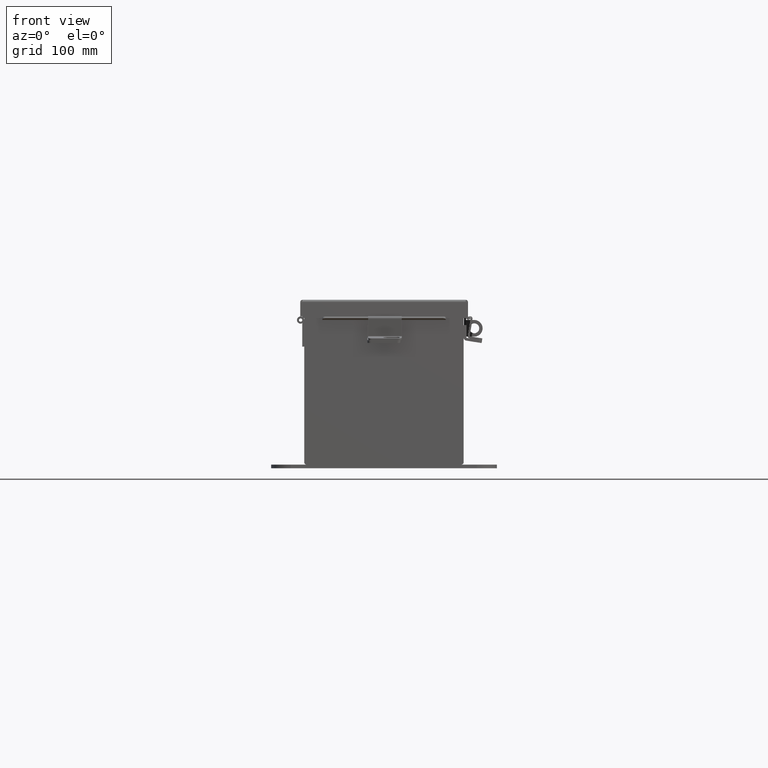
[diagram: clean part render]
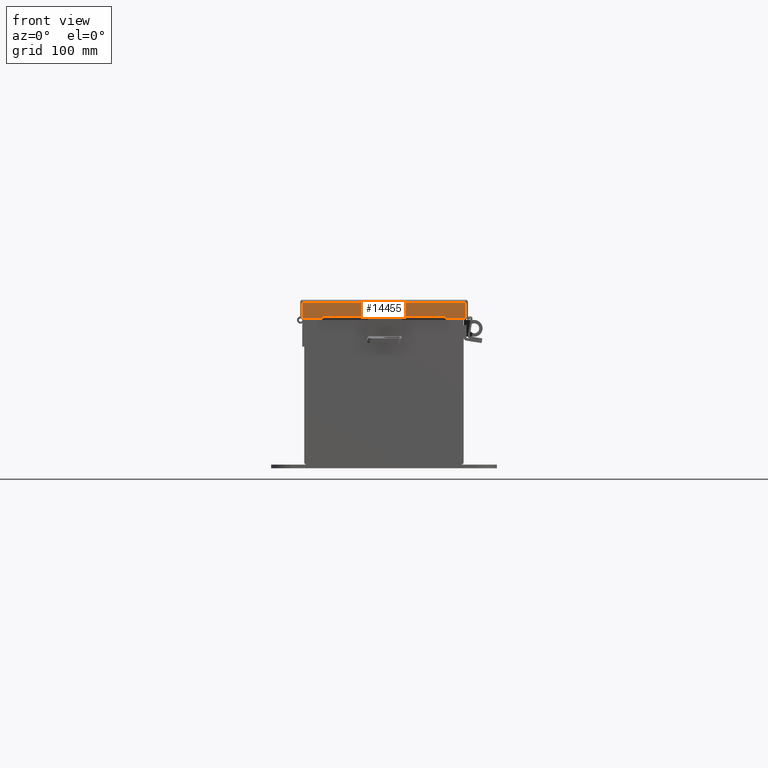
[diagram: same view with one face highlighted and labeled with its STEP entity id]
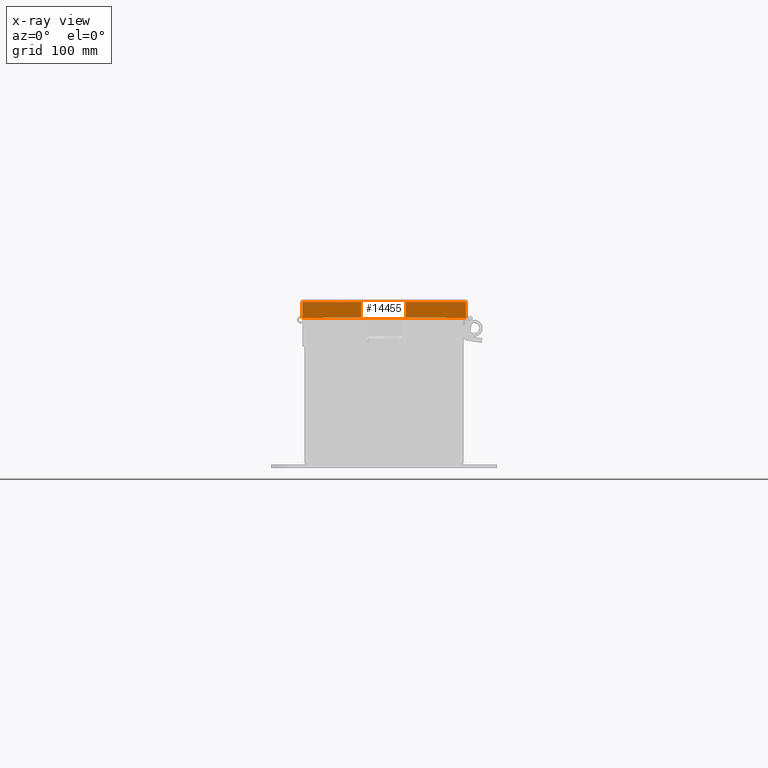
[diagram: x-ray of the same camera — body ghosted, the highlighted face saturated]
A machine part, front view. The second image highlights one B-rep face of the part: STEP entity #14455.
The next image is the same camera in x-ray: the body ghosted, the highlighted face saturated — about 0% of this face is hidden behind the body in this view.
In plain terms, the highlighted planar face has unit normal (0, 1, -0).
Its self-contained STEP definition (entity closure, byte-faithful):
#41 = VERTEX_POINT ( 'NONE', #7751 ) ;
#355 = LINE ( 'NONE', #15088, #18232 ) ;
#380 = VECTOR ( 'NONE', #18905, 39.37007874015748100 ) ;
#1029 = EDGE_CURVE ( 'NONE', #10179, #14215, #2088, .T. ) ;
#1508 = LINE ( 'NONE', #11964, #380 ) ;
#1895 = DIRECTION ( 'NONE',  ( -1.752481305030362300E-014, -2.078155447191594800E-029, -1.000000000000000000 ) ) ;
#2088 = LINE ( 'NONE', #19601, #19944 ) ;
#2804 = VERTEX_POINT ( 'NONE', #8851 ) ;
#2868 = DIRECTION ( 'NONE',  ( 1.577721810442017300E-030, -3.569293475308490600E-015, 1.000000000000000000 ) ) ;
#2993 = VERTEX_POINT ( 'NONE', #14683 ) ;
#3099 = DIRECTION ( 'NONE',  ( 1.577721810442017300E-030, 2.078155447191594800E-029, 1.000000000000000000 ) ) ;
#3570 = AXIS2_PLACEMENT_3D ( 'NONE', #11030, #7544, #12782 ) ;
#3825 = EDGE_CURVE ( 'NONE', #14215, #2993, #8493, .T. ) ;
#3898 = ORIENTED_EDGE ( 'NONE', *, *, #16463, .F. ) ;
#4078 = VERTEX_POINT ( 'NONE', #11285 ) ;
#4670 = LINE ( 'NONE', #7648, #13345 ) ;
#4992 = LINE ( 'NONE', #12391, #9046 ) ;
#5505 = ORIENTED_EDGE ( 'NONE', *, *, #15964, .F. ) ;
#7001 = ORIENTED_EDGE ( 'NONE', *, *, #22217, .F. ) ;
#7232 = DIRECTION ( 'NONE',  ( -1.000000000000000000, -5.770066475016023000E-030, 1.081919997491003100E-017 ) ) ;
#7544 = DIRECTION ( 'NONE',  ( 5.812878041189194900E-030, 1.000000000000000000, 3.569293475308490600E-015 ) ) ;
#7595 = ORIENTED_EDGE ( 'NONE', *, *, #8519, .T. ) ;
#7648 = CARTESIAN_POINT ( 'NONE',  ( -2.324478932188144500, -12.15625000000002300, 0.5967115427318815400 ) ) ;
#7751 = CARTESIAN_POINT ( 'NONE',  ( 2.324478932188146700, -12.15625000000002300, 0.5967115427318815400 ) ) ;
#7881 = ORIENTED_EDGE ( 'NONE', *, *, #9739, .F. ) ;
#7886 = ORIENTED_EDGE ( 'NONE', *, *, #1029, .T. ) ;
#8493 = LINE ( 'NONE', #20968, #12540 ) ;
#8519 = EDGE_CURVE ( 'NONE', #4078, #22170, #4992, .T. ) ;
#8538 = VERTEX_POINT ( 'NONE', #14219 ) ;
#8851 = CARTESIAN_POINT ( 'NONE',  ( -2.324478932188144500, -12.15625000000002300, 0.5967115427318815400 ) ) ;
#9046 = VECTOR ( 'NONE', #7232, 39.37007874015748100 ) ;
#9281 = PLANE ( 'NONE',  #3570 ) ;
#9387 = DIRECTION ( 'NONE',  ( 1.000000000000000000, 5.768659154690151100E-030, -1.577721810442017300E-030 ) ) ;
#9478 = ORIENTED_EDGE ( 'NONE', *, *, #3825, .T. ) ;
#9481 = LINE ( 'NONE', #17452, #10576 ) ;
#9581 = EDGE_LOOP ( 'NONE', ( #18282, #7595, #3898, #5505, #7886, #9478, #7001, #7881 ) ) ;
#9739 = EDGE_CURVE ( 'NONE', #2804, #41, #4670, .T. ) ;
#10179 = VERTEX_POINT ( 'NONE', #15722 ) ;
#10576 = VECTOR ( 'NONE', #1895, 39.37007874015748100 ) ;
#11030 = CARTESIAN_POINT ( 'NONE',  ( 9.604153102725926100E-018, -12.15625000000002100, -4.261682870116250900E-014 ) ) ;
#11285 = CARTESIAN_POINT ( 'NONE',  ( -2.324478932188146700, -12.15625000000002300, 0.6123000000000005100 ) ) ;
#11615 = DIRECTION ( 'NONE',  ( 1.577721810442017300E-030, -3.569293475308490600E-015, 1.000000000000000000 ) ) ;
#11964 = CARTESIAN_POINT ( 'NONE',  ( -3.156249999999996900, -12.15625000000002100, 0.01300000000000010700 ) ) ;
#12391 = CARTESIAN_POINT ( 'NONE',  ( 7.469896857675719000E-018, -12.15625000000002300, 0.6123000000000091700 ) ) ;
#12540 = VECTOR ( 'NONE', #17545, 39.37007874015748100 ) ;
#12782 = DIRECTION ( 'NONE',  ( 1.577721810442017300E-030, -3.569293475308490600E-015, 1.000000000000000000 ) ) ;
#13345 = VECTOR ( 'NONE', #9387, 39.37007874015748100 ) ;
#14064 = VECTOR ( 'NONE', #3099, 39.37007874015748100 ) ;
#14215 = VERTEX_POINT ( 'NONE', #20801 ) ;
#14219 = CARTESIAN_POINT ( 'NONE',  ( -3.074478932188133400, -12.15625000000002100, 0.01300000000000010700 ) ) ;
#14455 = ADVANCED_FACE ( 'NONE', ( #19428 ), #9281, .F. ) ;
#14615 = LINE ( 'NONE', #16937, #14064 ) ;
#14683 = CARTESIAN_POINT ( 'NONE',  ( 2.324478932188143200, -12.15625000000002300, 0.6122999999999994000 ) ) ;
#15088 = CARTESIAN_POINT ( 'NONE',  ( -3.074478932188133400, -12.15625000000002100, 0.0000000000000000000 ) ) ;
#15722 = CARTESIAN_POINT ( 'NONE',  ( 3.074478932188156500, -12.15625000000002100, 0.01300000000000010700 ) ) ;
#15964 = EDGE_CURVE ( 'NONE', #10179, #8538, #1508, .T. ) ;
#16463 = EDGE_CURVE ( 'NONE', #8538, #22170, #355, .T. ) ;
#16937 = CARTESIAN_POINT ( 'NONE',  ( 2.324478932188146700, -12.15625000000002300, 0.5967115427318815400 ) ) ;
#17452 = CARTESIAN_POINT ( 'NONE',  ( -2.324478932188146700, -12.15625000000002300, 0.6123000000000005100 ) ) ;
#17545 = DIRECTION ( 'NONE',  ( -1.000000000000000000, -5.770066475016023000E-030, 1.081919997491003100E-017 ) ) ;
#18232 = VECTOR ( 'NONE', #11615, 39.37007874015748100 ) ;
#18282 = ORIENTED_EDGE ( 'NONE', *, *, #19563, .F. ) ;
#18905 = DIRECTION ( 'NONE',  ( -1.000000000000000000, -5.719355348113837800E-030, 1.577721810442017300E-030 ) ) ;
#19428 = FACE_OUTER_BOUND ( 'NONE', #9581, .T. ) ;
#19563 = EDGE_CURVE ( 'NONE', #4078, #2804, #9481, .T. ) ;
#19601 = CARTESIAN_POINT ( 'NONE',  ( 3.074478932188156900, -12.15625000000002100, -4.370956789862821100E-014 ) ) ;
#19944 = VECTOR ( 'NONE', #2868, 39.37007874015748100 ) ;
#20263 = CARTESIAN_POINT ( 'NONE',  ( -3.074478932188138300, -12.15625000000002300, 0.6122999999999994000 ) ) ;
#20801 = CARTESIAN_POINT ( 'NONE',  ( 3.074478932188152000, -12.15625000000002300, 0.6123000000000005100 ) ) ;
#20968 = CARTESIAN_POINT ( 'NONE',  ( 7.469896857675719000E-018, -12.15625000000002300, 0.6123000000000091700 ) ) ;
#22170 = VERTEX_POINT ( 'NONE', #20263 ) ;
#22217 = EDGE_CURVE ( 'NONE', #41, #2993, #14615, .T. ) ;